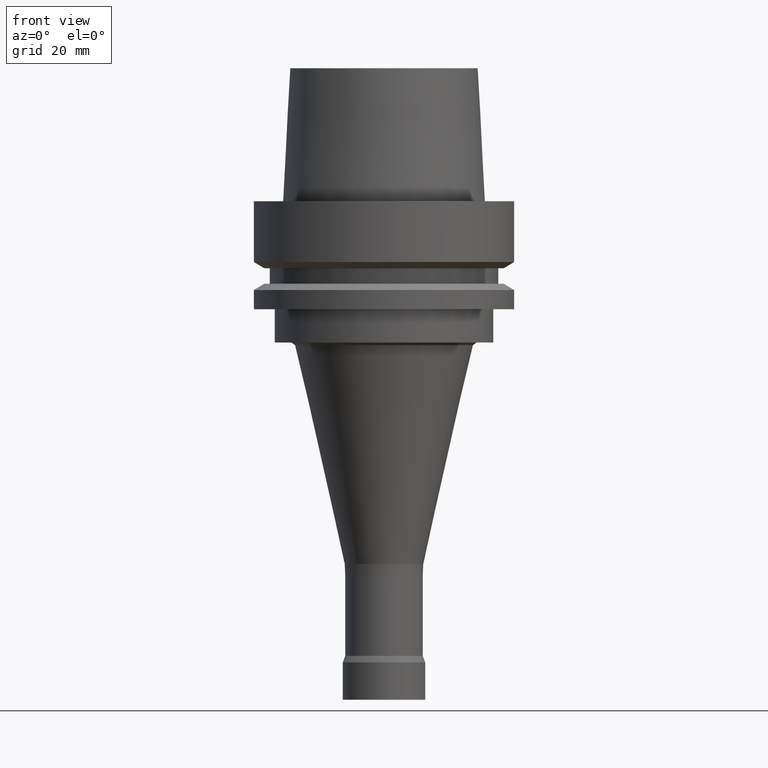
[diagram: clean part render]
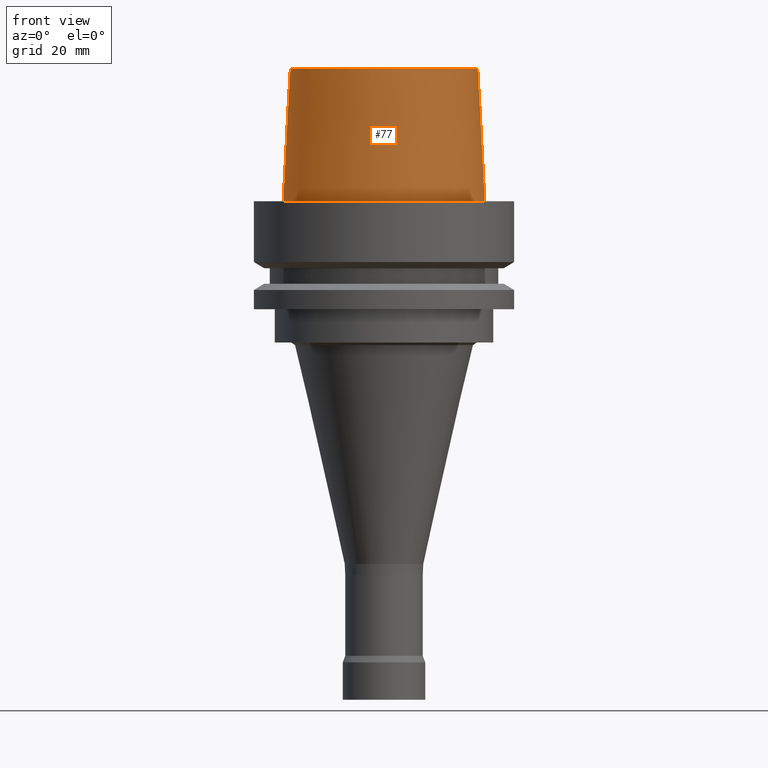
[diagram: same view with one face highlighted and labeled with its STEP entity id]
A machine part, front view. The second image highlights one B-rep face of the part: STEP entity #77.
In plain terms, the highlighted conical surface has half-angle 2.862 deg.
Its self-contained STEP definition (entity closure, byte-faithful):
#77=ADVANCED_FACE('',(#100,#101),#102,.T.);
#100=FACE_BOUND('',#158,.T.);
#101=FACE_BOUND('',#159,.T.);
#102=CONICAL_SURFACE('',#160,23.5149999985447,0.0499583958256321);
#158=EDGE_LOOP('',(#220));
#159=EDGE_LOOP('',(#221));
#160=AXIS2_PLACEMENT_3D('',#222,#223,#224);
#220=ORIENTED_EDGE('',*,*,#312,.F.);
#221=ORIENTED_EDGE('',*,*,#311,.T.);
#222=CARTESIAN_POINT('',(-9.79717439317882E-016,-1.95943487863576E-015,16.0));
#223=DIRECTION('',(6.12323399573676E-017,1.22464679914735E-016,-1.0));
#224=DIRECTION('',(-1.23259516440783E-032,1.0,1.22464679914735E-016));
#311=EDGE_CURVE('',#331,#331,#332,.T.);
#312=EDGE_CURVE('',#333,#333,#334,.T.);
#331=VERTEX_POINT('',#369);
#332=CIRCLE('',#370,22.7149999968815);
#333=VERTEX_POINT('',#371);
#334=CIRCLE('',#372,24.3150000002079);
#369=CARTESIAN_POINT('',(-1.95943487863577E-015,22.7149999968815,32.0));
#370=AXIS2_PLACEMENT_3D('',#408,#409,#410);
#371=CARTESIAN_POINT('',(-2.99705514228327E-031,24.3150000002079,2.97772869215225E-015));
#372=AXIS2_PLACEMENT_3D('',#411,#412,#413);
#408=CARTESIAN_POINT('',(-1.95943487863576E-015,-3.91886975727153E-015,32.0));
#409=DIRECTION('',(6.12323399573677E-017,1.22464679914735E-016,-1.0));
#410=DIRECTION('',(-1.23259516440783E-032,1.0,1.22464679914735E-016));
#411=CARTESIAN_POINT('',(0.0,0.0,0.0));
#412=DIRECTION('',(6.12323399573677E-017,1.22464679914735E-016,-1.0));
#413=DIRECTION('',(-1.23259516440783E-032,1.0,1.22464679914735E-016));